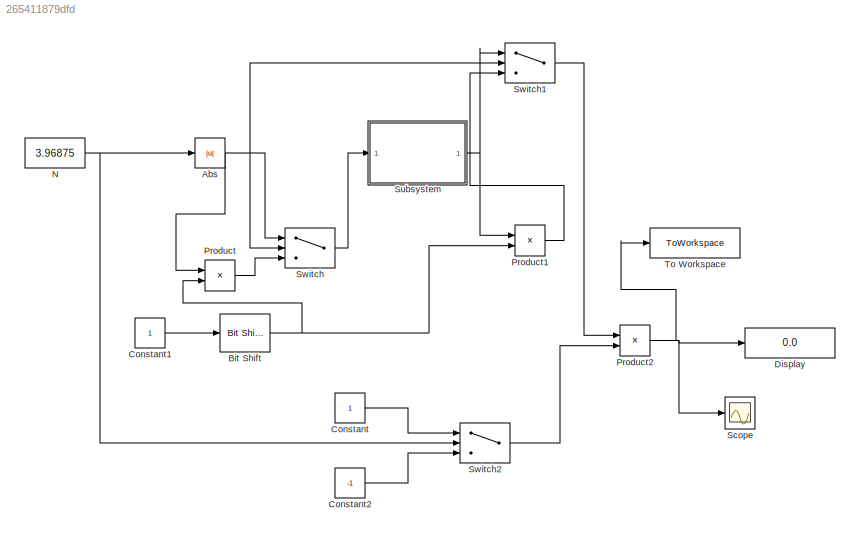
MODEL slx_265411879dfd
KIND model
CONFIG AbsTol = auto
CONFIG EnableMultiTasking = off
CONFIG FixedStep = auto
CONFIG MaxStep = auto
CONFIG MinStep = auto
CONFIG RelTol = 1e-3
CONFIG SampleTimeConstraint = Unconstrained
CONFIG SolverName = VariableStepAuto
CONFIG StartTime = 0.0
CONFIG StopTime = 10.0
BLOCK [Abs] Abs
  SaturateOnIntegerOverflow = off
BLOCK [Reference] Bit Shift  REF=hdlsllib/Logic and Bit
Operations/Bit Shift
  Ports = [1, 1]
  SourceBlock = hdlsllib/Logic and Bit\nOperations/Bit Shift
  SourceProductBaseCode = SL
  SourceType = Bit Shift
BLOCK [Constant] Constant
BLOCK [Constant] Constant1
BLOCK [Constant] Constant2
  Value = -1
BLOCK [Display] Display
  Decimation = 1
  Ports = [1]
BLOCK [Constant] N
  Value = 3.96875
BLOCK [Product] Product
  Ports = [2, 1]
BLOCK [Product] Product1
  Ports = [2, 1]
BLOCK [Product] Product2
  Ports = [2, 1]
BLOCK [Scope] Scope
  Floating = off
  NumInputPorts = 1
  Ports = [1]
  ScopeSpecificationString = Simulink.scopes.TimeScopeBlockCfg('CurrentConfiguration', extmgr.ConfigurationSet(extmgr.Configuration('Core','General UI',true),extmgr.Configuration('Core','Source UI',true),extmgr.Configuration('Sources','WiredSimulink',true,'DataLoggingVariableName','ScopeData2'),extmgr.Configuration('Visuals','Time Domain',true,'SerializedDisplays',{struct('MinYLimReal','-14.53203','MaxYLimReal','36.00000','YL...<+1392ch>
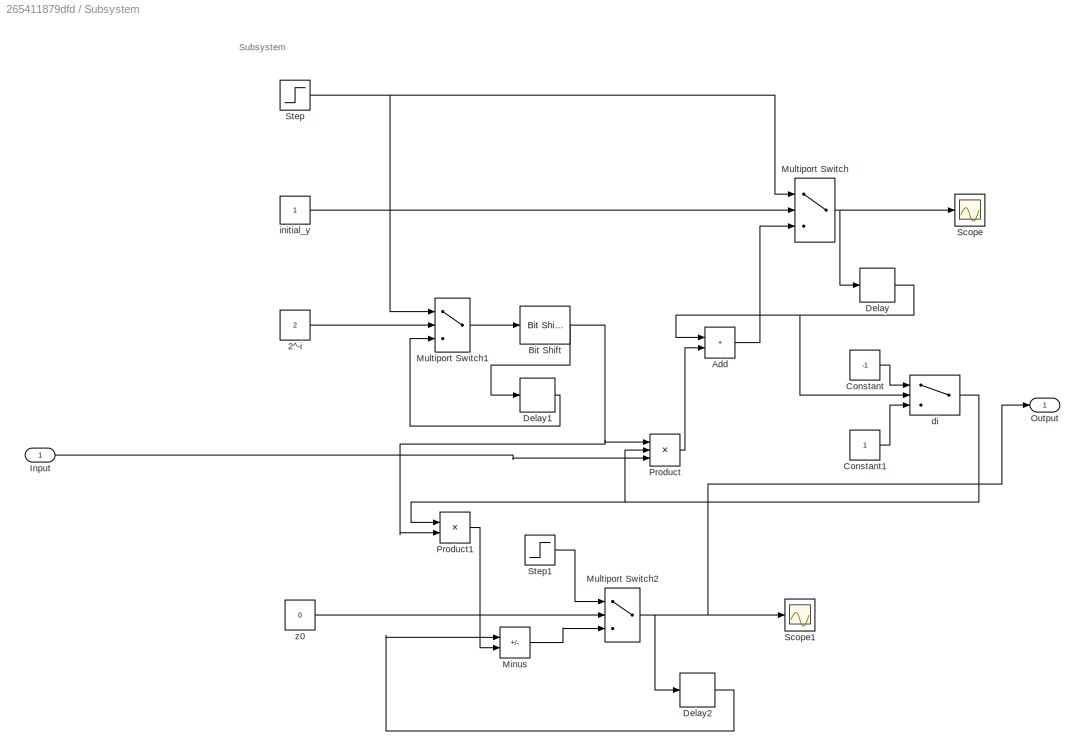
BLOCK [SubSystem] Subsystem
  Ports = [1, 1]
  RequestExecContextInheritance = off
BLOCK [Constant] Subsystem/2^-i
  Value = 2
BLOCK [Sum] Subsystem/Add
  IconShape = rectangular
  Ports = [2, 1]
BLOCK [Reference] Subsystem/Bit Shift  REF=hdlsllib/Logic and Bit
Operations/Bit Shift
  Ports = [1, 1]
  SourceBlock = hdlsllib/Logic and Bit\nOperations/Bit Shift
  SourceProductBaseCode = SL
  SourceType = Bit Shift
BLOCK [Constant] Subsystem/Constant
  Value = -1
BLOCK [Constant] Subsystem/Constant1
BLOCK [Delay] Subsystem/Delay
  DelayLength = 1
  InputPortMap = u0
  Ports = [1, 1]
BLOCK [Delay] Subsystem/Delay1
  DelayLength = 1
  InputPortMap = u0
  Ports = [1, 1]
BLOCK [Delay] Subsystem/Delay2
  DelayLength = 1
  InputPortMap = u0
  Ports = [1, 1]
BLOCK [Inport] Subsystem/Input
BLOCK [Sum] Subsystem/Minus
  IconShape = rectangular
  Inputs = +-
  Ports = [2, 1]
BLOCK [MultiPortSwitch] Subsystem/Multiport Switch
  DataPortOrder = Zero-based contiguous
  InputSameDT = off
  Inputs = 2
  Ports = [3, 1]
  SaturateOnIntegerOverflow = off
  zeroidx = on
BLOCK [MultiPortSwitch] Subsystem/Multiport Switch1
  DataPortOrder = Zero-based contiguous
  InputSameDT = off
  Inputs = 2
  Ports = [3, 1]
  SaturateOnIntegerOverflow = off
  zeroidx = on
BLOCK [MultiPortSwitch] Subsystem/Multiport Switch2
  DataPortOrder = Zero-based contiguous
  InputSameDT = off
  Inputs = 2
  Ports = [3, 1]
  SaturateOnIntegerOverflow = off
  zeroidx = on
BLOCK [Outport] Subsystem/Output
BLOCK [Product] Subsystem/Product
  Inputs = 3
  Ports = [3, 1]
BLOCK [Product] Subsystem/Product1
  Ports = [2, 1]
BLOCK [Scope] Subsystem/Scope
  Floating = off
  NumInputPorts = 1
  Ports = [1]
  ScopeSpecificationString = Simulink.scopes.TimeScopeBlockCfg('CurrentConfiguration', extmgr.ConfigurationSet(extmgr.Configuration('Core','General UI',true),extmgr.Configuration('Core','Source UI',true),extmgr.Configuration('Sources','WiredSimulink',true),extmgr.Configuration('Visuals','Time Domain',true,'SerializedDisplays',{struct('MinYLimReal','-1.8125','MaxYLimReal','1.3125','YLabelReal','','MinYLimMag','0.00000','MaxYLi...<+1330ch>
BLOCK [Scope] Subsystem/Scope1
  Floating = off
  NumInputPorts = 1
  Ports = [1]
  ScopeSpecificationString = Simulink.scopes.TimeScopeBlockCfg('CurrentConfiguration', extmgr.ConfigurationSet(extmgr.Configuration('Core','General UI',true),extmgr.Configuration('Core','Source UI',true),extmgr.Configuration('Sources','WiredSimulink',true,'DataLoggingVariableName','ScopeData1'),extmgr.Configuration('Visuals','Time Domain',true,'SerializedDisplays',{struct('MinYLimReal','-0.0147','MaxYLimReal','0.5625','YLabel...<+1431ch>
BLOCK [Step] Subsystem/Step
  SampleTime = 0
BLOCK [Step] Subsystem/Step1
  SampleTime = 0
BLOCK [Switch] Subsystem/di
  Criteria = u2 > Threshold
  InputSameDT = off
  SaturateOnIntegerOverflow = off
BLOCK [Constant] Subsystem/initial_y
BLOCK [Constant] Subsystem/z0
  Value = 0
BLOCK [Switch] Switch
  Criteria = u2 > Threshold
  InputSameDT = off
  SaturateOnIntegerOverflow = off
  Threshold = 1
BLOCK [Switch] Switch1
  Criteria = u2 > Threshold
  InputSameDT = off
  SaturateOnIntegerOverflow = off
  Threshold = 1
BLOCK [Switch] Switch2
  Criteria = u2 > Threshold
  InputSameDT = off
  SaturateOnIntegerOverflow = off
BLOCK [ToWorkspace] To Workspace
  FixptAsFi = on
  MaxDataPoints = inf
  Ports = [1]
  SampleTime = -1
  SaveFormat = Timeseries
  VariableName = simout
ANNOTATION Subsystem: Subsystem
NET Abs:1 -> Product:1, Switch1:2, Switch:1, Switch:2
NET Bit Shift:1 -> Product1:2, Product:2
LINE Constant1:1 -> Bit Shift:1
LINE Constant2:1 -> Switch2:3
LINE Constant:1 -> Switch2:1
NET N:1 -> Abs:1, Switch2:2
LINE Product1:1 -> Switch1:3
NET Product2:1 -> Display:1, Scope:1, To Workspace:1
LINE Product:1 -> Switch:3
LINE Subsystem/2^-i:1 -> Subsystem/Multiport Switch1:2
LINE Subsystem/Add:1 -> Subsystem/Multiport Switch:3
NET Subsystem/Bit Shift:1 -> Subsystem/Delay1:1, Subsystem/Product1:2, Subsystem/Product:1
LINE Subsystem/Constant1:1 -> Subsystem/di:3
LINE Subsystem/Constant:1 -> Subsystem/di:1
LINE Subsystem/Delay1:1 -> Subsystem/Multiport Switch1:3
LINE Subsystem/Delay2:1 -> Subsystem/Minus:1
NET Subsystem/Delay:1 -> Subsystem/Add:1, Subsystem/di:2
LINE Subsystem/Input:1 -> Subsystem/Product:3
LINE Subsystem/Minus:1 -> Subsystem/Multiport Switch2:3
LINE Subsystem/Multiport Switch1:1 -> Subsystem/Bit Shift:1
NET Subsystem/Multiport Switch2:1 -> Subsystem/Delay2:1, Subsystem/Output:1, Subsystem/Scope1:1
NET Subsystem/Multiport Switch:1 -> Subsystem/Delay:1, Subsystem/Scope:1
LINE Subsystem/Product1:1 -> Subsystem/Minus:2
LINE Subsystem/Product:1 -> Subsystem/Add:2
LINE Subsystem/Step1:1 -> Subsystem/Multiport Switch2:1
NET Subsystem/Step:1 -> Subsystem/Multiport Switch1:1, Subsystem/Multiport Switch:1
NET Subsystem/di:1 -> Subsystem/Product1:1, Subsystem/Product:2
LINE Subsystem/initial_y:1 -> Subsystem/Multiport Switch:2
LINE Subsystem/z0:1 -> Subsystem/Multiport Switch2:2
NET Subsystem:1 -> Product1:1, Switch1:1
LINE Switch1:1 -> Product2:1
LINE Switch2:1 -> Product2:2
LINE Switch:1 -> Subsystem:1
note: NET lines group one-source signal fan-out (src -> all destinations, sorted); 1:1 wires keep LINE
